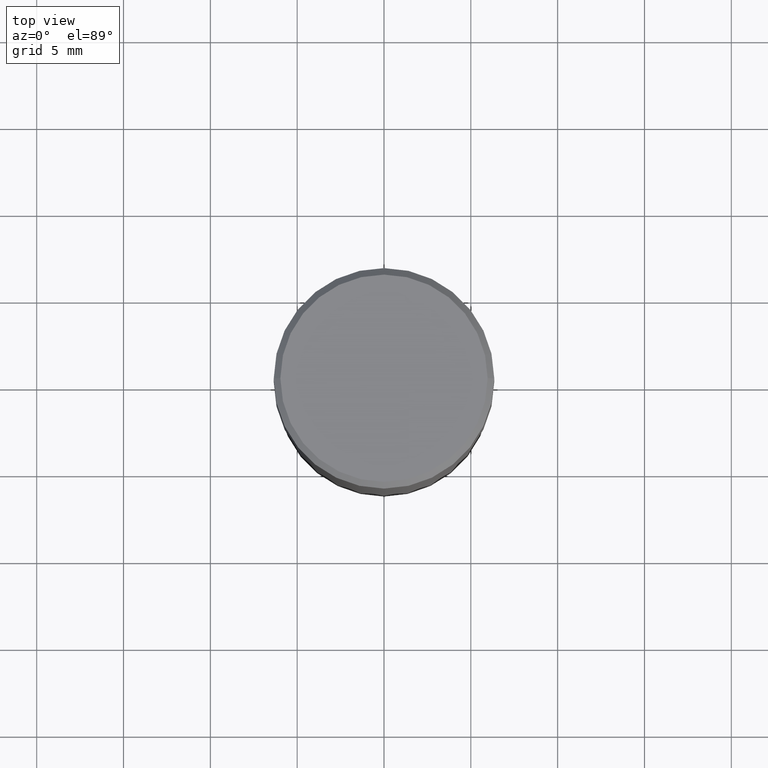
[diagram: clean part render]
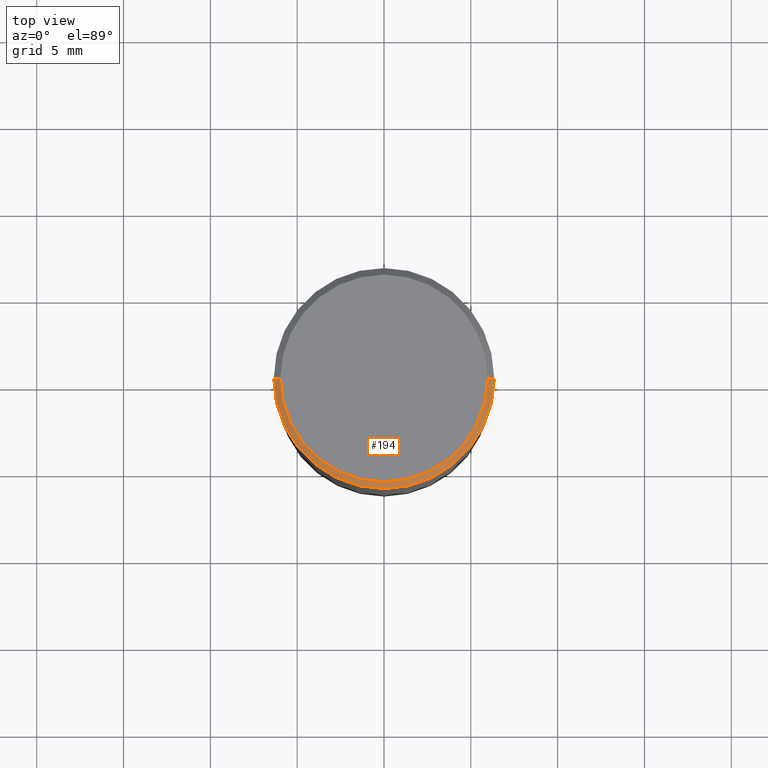
[diagram: same view with one face highlighted and labeled with its STEP entity id]
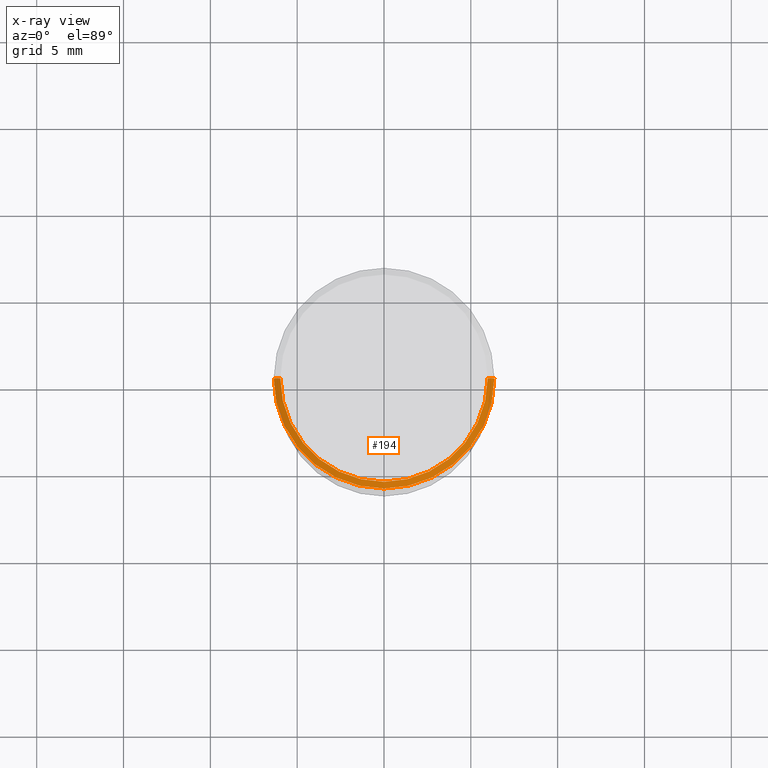
[diagram: x-ray of the same camera — body ghosted, the highlighted face saturated]
A machine part, top view. The second image highlights one B-rep face of the part: STEP entity #194.
The next image is the same camera in x-ray: the body ghosted, the highlighted face saturated — about 0% of this face is hidden behind the body in this view.
In plain terms, the highlighted conical surface has half-angle 45 deg.
Its self-contained STEP definition (entity closure, byte-faithful):
#8 = DIRECTION ( 'NONE',  ( -0.7071067811865441310, 2.468850131082221167E-15, -0.7071067811865509034 ) ) ;
#17 = DIRECTION ( 'NONE',  ( 2.445468806185136597E-29, -3.491481338843145583E-15, -1.000000000000000000 ) ) ;
#24 = DIRECTION ( 'NONE',  ( 1.000000000000000000, -6.982962677686267499E-15, 4.878549297894958458E-29 ) ) ;
#37 = LINE ( 'NONE', #360, #354 ) ;
#43 = CARTESIAN_POINT ( 'NONE',  ( -0.2349999999999999867, 1.667182339297596256E-15, 1.568636843340762393E-16 ) ) ;
#54 = LINE ( 'NONE', #337, #393 ) ;
#63 = VERTEX_POINT ( 'NONE', #43 ) ;
#68 = ORIENTED_EDGE ( 'NONE', *, *, #129, .T. ) ;
#81 = CARTESIAN_POINT ( 'NONE',  ( 0.2500000000000000000, -1.798112889504214151E-15, -0.01499999999999999944 ) ) ;
#94 = ORIENTED_EDGE ( 'NONE', *, *, #203, .T. ) ;
#119 = EDGE_LOOP ( 'NONE', ( #464, #424, #68, #94 ) ) ;
#129 = EDGE_CURVE ( 'NONE', #63, #463, #37, .T. ) ;
#137 = VERTEX_POINT ( 'NONE', #361 ) ;
#139 = CARTESIAN_POINT ( 'NONE',  ( -0.2500000000000000000, 9.455763057682970257E-16, -0.01499999999999999944 ) ) ;
#156 = DIRECTION ( 'NONE',  ( 1.000000000000000000, -6.982962677686266711E-15, 0.000000000000000000 ) ) ;
#161 = AXIS2_PLACEMENT_3D ( 'NONE', #195, #17, #190 ) ;
#190 = DIRECTION ( 'NONE',  ( -1.000000000000000000, 6.982962677686266711E-15, 0.000000000000000000 ) ) ;
#194 = ADVANCED_FACE ( 'NONE', ( #260 ), #293, .T. ) ;
#195 = CARTESIAN_POINT ( 'NONE',  ( 3.668203209277705088E-31, -5.237222008264718399E-17, -0.01499999999999999944 ) ) ;
#199 = AXIS2_PLACEMENT_3D ( 'NONE', #409, #296, #156 ) ;
#203 = EDGE_CURVE ( 'NONE', #463, #219, #208, .T. ) ;
#208 = CIRCLE ( 'NONE', #199, 0.2500000000000000000 ) ;
#219 = VERTEX_POINT ( 'NONE', #81 ) ;
#221 = EDGE_CURVE ( 'NONE', #63, #137, #452, .T. ) ;
#229 = EDGE_CURVE ( 'NONE', #137, #219, #54, .T. ) ;
#258 = CARTESIAN_POINT ( 'NONE',  ( -3.836052468622837406E-45, 5.476866265946494270E-31, 1.568636843340877764E-16 ) ) ;
#260 = FACE_OUTER_BOUND ( 'NONE', #119, .T. ) ;
#291 = DIRECTION ( 'NONE',  ( 0.7071067811865441310, -7.319954787623245001E-15, -0.7071067811865509034 ) ) ;
#293 = CONICAL_SURFACE ( 'NONE', #161, 0.2500000000000000000, 0.7853981633974435050 ) ;
#296 = DIRECTION ( 'NONE',  ( -2.445468806185136597E-29, 3.491481338843145583E-15, 1.000000000000000000 ) ) ;
#332 = AXIS2_PLACEMENT_3D ( 'NONE', #258, #370, #24 ) ;
#337 = CARTESIAN_POINT ( 'NONE',  ( 0.2500000000000000000, -1.767496719525530167E-15, -0.01499999999999999944 ) ) ;
#354 = VECTOR ( 'NONE', #8, 39.37007874015748143 ) ;
#360 = CARTESIAN_POINT ( 'NONE',  ( -0.2500000000000000000, 1.693368449338919401E-15, -0.01499999999999999944 ) ) ;
#361 = CARTESIAN_POINT ( 'NONE',  ( 0.2349999999999999867, -1.689856874500919833E-15, 1.568636843340994368E-16 ) ) ;
#370 = DIRECTION ( 'NONE',  ( -2.445468806185136597E-29, 3.491481338843145583E-15, 1.000000000000000000 ) ) ;
#393 = VECTOR ( 'NONE', #291, 39.37007874015748143 ) ;
#409 = CARTESIAN_POINT ( 'NONE',  ( 3.668203209277705088E-31, -5.237222008264718399E-17, -0.01499999999999999944 ) ) ;
#424 = ORIENTED_EDGE ( 'NONE', *, *, #221, .F. ) ;
#452 = CIRCLE ( 'NONE', #332, 0.2349999999999999867 ) ;
#463 = VERTEX_POINT ( 'NONE', #139 ) ;
#464 = ORIENTED_EDGE ( 'NONE', *, *, #229, .F. ) ;